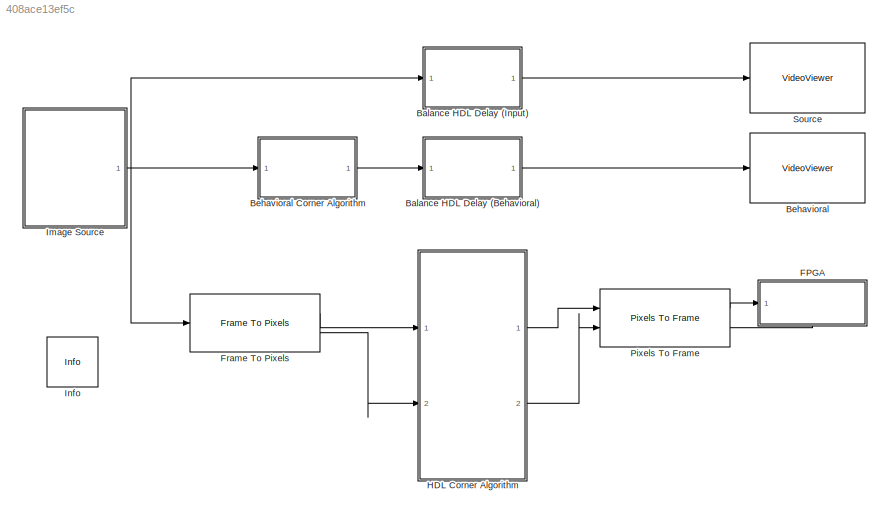
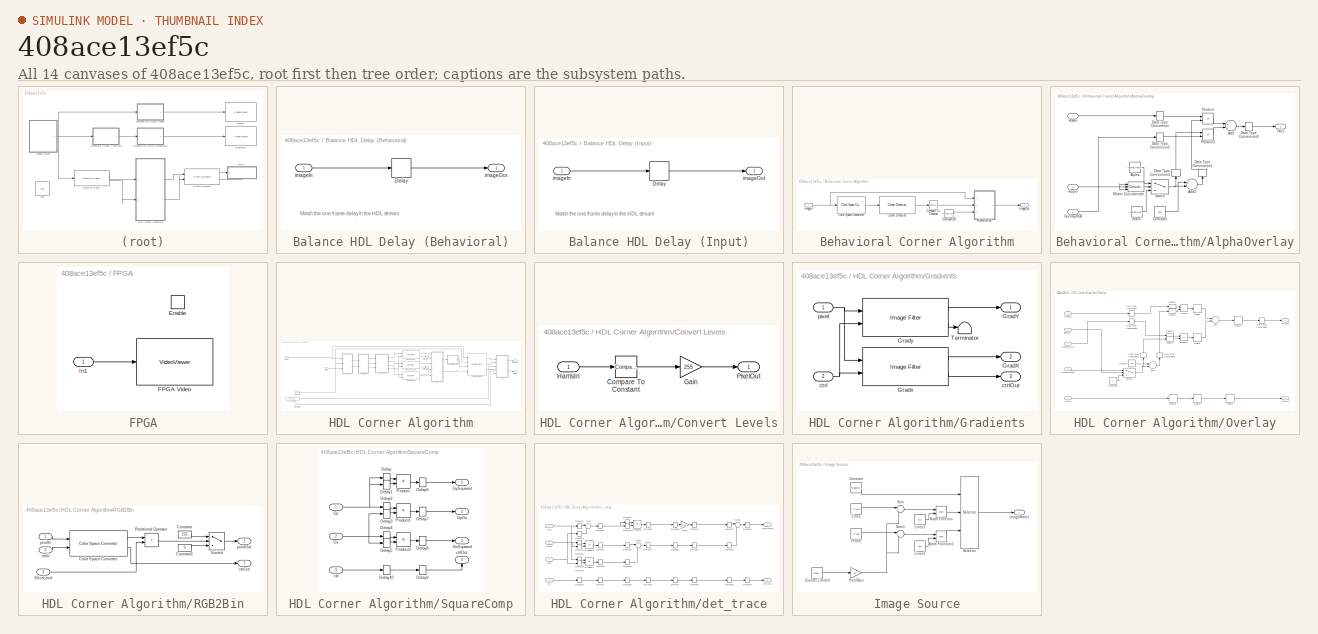
[diagram: thumbnail index - all 14 canvases of the model, root first then tree order]
MODEL slx_408ace13ef5c
KIND model
CONFIG AbsTol = auto
CONFIG EnableMultiTasking = off
CONFIG FixedStep = auto
CONFIG InitFcn = % block settings for 240p, change format as appropriate\nfrm2pix = visionhdl.FrameToPixels;\nfrm2pix.VideoFormat = '240p';\n[activePixelsPerLine, activeLines, totalPixels] = getparamfromfrm2pix(frm2pix);\nnumFrames = 100;\nsimTime = numFrames;\n% pixel control bus\nevalin('base','pixelcontrolbus');
CONFIG MaxStep = auto
CONFIG MinStep = auto
CONFIG RelTol = 1e-3
CONFIG SampleTimeConstraint = Unconstrained
CONFIG Solver = FixedStepDiscrete
CONFIG SolverName = FixedStepDiscrete
CONFIG StartTime = 0.0
CONFIG StopTime = simTime
BLOCK [SubSystem] Balance HDL Delay (Behavioral)
  Ports = [1, 1]
  RequestExecContextInheritance = off
  Variant = off
BLOCK [Delay] Balance HDL Delay (Behavioral)/Delay
  DelayLength = 1
  InputPortMap = u0
  Ports = [1, 1]
BLOCK [Inport] Balance HDL Delay (Behavioral)/imageIn
  IconDisplay = Port number
BLOCK [Outport] Balance HDL Delay (Behavioral)/imageOut
  IconDisplay = Port number
BLOCK [SubSystem] Balance HDL Delay (Input)
  Ports = [1, 1]
  RequestExecContextInheritance = off
  Variant = off
BLOCK [Delay] Balance HDL Delay (Input)/Delay
  DelayLength = 1
  InputPortMap = u0
  Ports = [1, 1]
BLOCK [Inport] Balance HDL Delay (Input)/imageIn
  IconDisplay = Port number
BLOCK [Outport] Balance HDL Delay (Input)/imageOut
  IconDisplay = Port number
BLOCK [VideoViewer] Behavioral
  FigPos = [400.2 479.6 410.4 300]
  Ports = [1]
  ScopeSpecificationString = vipscopes.VideoViewerScopeCfg('CurrentConfiguration', extmgr.ConfigurationSet(extmgr.Configuration('Core','General UI',true),extmgr.Configuration('Core','Source UI',true),extmgr.Configuration('Sources','WiredSimulink',true),extmgr.Configuration('Visuals','Video',true),extmgr.Configuration('Tools','Image Navigation Tools',true),extmgr.Configuration('Tools','Image Tool',true),extmgr.Configuration('T...<+107ch>
BLOCK [SubSystem] Behavioral Corner Algorithm
  Ports = [1, 1]
  RequestExecContextInheritance = off
  Variant = off
BLOCK [SubSystem] Behavioral Corner Algorithm/AlphaOverlay
  Ports = [3, 1]
  RequestExecContextInheritance = off
  Variant = off
BLOCK [Sum] Behavioral Corner Algorithm/AlphaOverlay/Add
  InputSameDT = off
  OutDataTypeStr = fixdt(0,8,8)
  Ports = [2, 1]
  SaturateOnIntegerOverflow = off
BLOCK [Sum] Behavioral Corner Algorithm/AlphaOverlay/Add3
  InputSameDT = off
  Inputs = +-
  OutDataTypeStr = uint8
  Ports = [2, 1]
  SaturateOnIntegerOverflow = off
BLOCK [Constant] Behavioral Corner Algorithm/AlphaOverlay/Alpha
  OutDataTypeStr = uint8
  Value = repmat(reshape([128,128,128],[1 1 3]),[240 320 1])
BLOCK [Constant] Behavioral Corner Algorithm/AlphaOverlay/Black
  OutDataTypeStr = uint8
  Value = repmat(reshape([0,0,0],[1 1 3]),[240 320 1])
BLOCK [Constant] Behavioral Corner Algorithm/AlphaOverlay/Constant
  OutDataTypeStr = uint8
  SampleTime = -1
  Value = 255
BLOCK [DataTypeConversion] Behavioral Corner Algorithm/AlphaOverlay/Data Type Conversion
  ConvertRealWorld = Stored Integer (SI)
  OutDataTypeStr = fixdt(0,8,8)
  RndMeth = Floor
  SaturateOnIntegerOverflow = off
BLOCK [DataTypeConversion] Behavioral Corner Algorithm/AlphaOverlay/Data Type Conversion1
  ConvertRealWorld = Stored Integer (SI)
  OutDataTypeStr = fixdt(0,8,8)
  RndMeth = Floor
  SaturateOnIntegerOverflow = off
BLOCK [DataTypeConversion] Behavioral Corner Algorithm/AlphaOverlay/Data Type Conversion2
  ConvertRealWorld = Stored Integer (SI)
  OutDataTypeStr = fixdt(0,8,8)
  RndMeth = Floor
  SaturateOnIntegerOverflow = off
BLOCK [DataTypeConversion] Behavioral Corner Algorithm/AlphaOverlay/Data Type Conversion5
  ConvertRealWorld = Stored Integer (SI)
  OutDataTypeStr = fixdt(0,8,8)
  RndMeth = Floor
  SaturateOnIntegerOverflow = off
BLOCK [DataTypeConversion] Behavioral Corner Algorithm/AlphaOverlay/Data Type Conversion8
  ConvertRealWorld = Stored Integer (SI)
  OutDataTypeStr = uint8
  RndMeth = Floor
  SaturateOnIntegerOverflow = off
BLOCK [Inport] Behavioral Corner Algorithm/AlphaOverlay/KeyIn
  IconDisplay = Port number
  Port = 2
BLOCK [Concatenate] Behavioral Corner Algorithm/AlphaOverlay/Matrix Concatenate
  ConcatenateDimension = 3
  Mode = Multidimensional array
  NumInputs = 3
  Ports = [3, 1]
BLOCK [Outport] Behavioral Corner Algorithm/AlphaOverlay/Out1
  IconDisplay = Port number
BLOCK [Inport] Behavioral Corner Algorithm/AlphaOverlay/OverlayRGB
  IconDisplay = Port number
  Port = 3
BLOCK [Product] Behavioral Corner Algorithm/AlphaOverlay/Product
  InputSameDT = off
  OutDataTypeStr = fixdt(0,8,8)
  Ports = [2, 1]
  RndMeth = Floor
BLOCK [Product] Behavioral Corner Algorithm/AlphaOverlay/Product3
  InputSameDT = off
  OutDataTypeStr = fixdt(0,8,8)
  Ports = [2, 1]
  RndMeth = Floor
BLOCK [Inport] Behavioral Corner Algorithm/AlphaOverlay/RGBIn
  IconDisplay = Port number
BLOCK [Switch] Behavioral Corner Algorithm/AlphaOverlay/Switch
  Criteria = u2 ~= 0
  InputSameDT = off
  SaturateOnIntegerOverflow = off
BLOCK [Reference] Behavioral Corner Algorithm/Color Space Conversion  REF=visionconversions/Color Space
 Conversion
  Ports = [1, 1]
  SourceBlock = visionconversions/Color Space\n Conversion
  SourceProductBaseCode = VP
  SourceProductName = Computer Vision System Toolbox
  SourceType = Color Space Conversion
BLOCK [Reference] Behavioral Corner Algorithm/Compare To Constant  REF=simulink/Logic and Bit
Operations/Compare
To Constant
  Ports = [1, 1]
  SourceBlock = simulink/Logic and Bit\nOperations/Compare\nTo Constant
  SourceProductBaseCode = SL
  SourceProductName = Simulink
  SourceType = Compare To Constant
BLOCK [Reference] Behavioral Corner Algorithm/Corner Detection  REF=visionanalysis/Corner Detection
  Ports = [1, 1]
  SourceBlock = visionanalysis/Corner Detection
  SourceProductBaseCode = VP
  SourceProductName = Computer Vision System Toolbox
  SourceType = Corner Detection
BLOCK [Constant] Behavioral Corner Algorithm/OverlayRGB 
  OutDataTypeStr = uint8
  Value = repmat(reshape([255,0,0],[1,1,3]),[240,320,1])
BLOCK [Inport] Behavioral Corner Algorithm/imageIn
  IconDisplay = Port number
BLOCK [Outport] Behavioral Corner Algorithm/imageOut
  IconDisplay = Port number
BLOCK [SubSystem] FPGA
  Ports = [1, 0, 1]
  RequestExecContextInheritance = off
  Variant = off
BLOCK [EnablePort] FPGA/Enable
  Ports = []
BLOCK [VideoViewer] FPGA/FPGA Video
  FigPos = [864.2 436.4 416 298.4]
  Ports = [1]
  ScopeSpecificationString = vipscopes.VideoViewerScopeCfg('CurrentConfiguration', extmgr.ConfigurationSet(extmgr.Configuration('Core','General UI',true),extmgr.Configuration('Core','Source UI',true),extmgr.Configuration('Sources','WiredSimulink',true),extmgr.Configuration('Visuals','Video',true,'AxesProperties',struct('Color',[1 1 1],'XColor',[0.15 0.15 0.15],'YColor',[0.15 0.15 0.15],'ZColor',[0.15 0.15 0.15],'XGrid','off',...<+639ch>
  colormapValue = gray(256)
BLOCK [Inport] FPGA/In1
  IconDisplay = Port number
BLOCK [Reference] Frame To Pixels  REF=visionhdlio/Frame To Pixels
  Ports = [1, 2]
  SourceBlock = visionhdlio/Frame To Pixels
  SourceProductBaseCode = VT
  SourceProductName = Vision HDL Toolbox
  SourceType = Frame To Pixels
BLOCK [SubSystem] HDL Corner Algorithm
  Ports = [2, 2]
  RequestExecContextInheritance = off
  TreatAsAtomicUnit = on
  Variant = off
BLOCK [Constant] HDL Corner Algorithm/Constant1
  OutDataTypeStr = uint8
  SampleTime = -1
  Value = [0,255,0]
  VectorParams1D = off
BLOCK [Constant] HDL Corner Algorithm/Constant3
  OutDataTypeStr = uint8
  SampleTime = -1
  Value = 70
BLOCK [Constant] HDL Corner Algorithm/Constant4
  OutDataTypeStr = uint8
  SampleTime = -1
  Value = 210
BLOCK [SubSystem] HDL Corner Algorithm/Convert Levels
  Ports = [1, 1]
  RequestExecContextInheritance = off
  Variant = off
BLOCK [Reference] HDL Corner Algorithm/Convert Levels/Compare To Constant  REF=simulink/Logic and Bit
Operations/Compare
To Constant
  Ports = [1, 1]
  SourceBlock = simulink/Logic and Bit\nOperations/Compare\nTo Constant
  SourceProductBaseCode = SL
  SourceProductName = Simulink
  SourceType = Compare To Constant
BLOCK [Gain] HDL Corner Algorithm/Convert Levels/Gain
  Gain = 255
  OutDataTypeStr = uint8
  ParamDataTypeStr = Inherit: Inherit via internal rule
  SaturateOnIntegerOverflow = off
BLOCK [Inport] HDL Corner Algorithm/Convert Levels/HarrisIn
  IconDisplay = Port number
BLOCK [Outport] HDL Corner Algorithm/Convert Levels/PixelOut
  IconDisplay = Port number
BLOCK [Reference] HDL Corner Algorithm/GaussianGx  REF=visionhdlfilter/Image Filter
  Ports = [2, 2]
  SourceBlock = visionhdlfilter/Image Filter
  SourceProductBaseCode = VT
  SourceProductName = Vision HDL Toolbox
  SourceType = Image Filter
BLOCK [Reference] HDL Corner Algorithm/GaussianGy  REF=visionhdlfilter/Image Filter
  Ports = [2, 2]
  SourceBlock = visionhdlfilter/Image Filter
  SourceProductBaseCode = VT
  SourceProductName = Vision HDL Toolbox
  SourceType = Image Filter
BLOCK [Reference] HDL Corner Algorithm/GaussianGyGx  REF=visionhdlfilter/Image Filter
  Ports = [2, 2]
  SourceBlock = visionhdlfilter/Image Filter
  SourceProductBaseCode = VT
  SourceProductName = Vision HDL Toolbox
  SourceType = Image Filter
BLOCK [SubSystem] HDL Corner Algorithm/Gradients
  Ports = [2, 3]
  RequestExecContextInheritance = off
  Variant = off
BLOCK [Outport] HDL Corner Algorithm/Gradients/GradX
  IconDisplay = Port number
  Port = 2
BLOCK [Outport] HDL Corner Algorithm/Gradients/GradY
  IconDisplay = Port number
BLOCK [Reference] HDL Corner Algorithm/Gradients/Gradx  REF=visionhdlfilter/Image Filter
  Ports = [2, 2]
  SourceBlock = visionhdlfilter/Image Filter
  SourceProductBaseCode = VT
  SourceProductName = Vision HDL Toolbox
  SourceType = Image Filter
BLOCK [Reference] HDL Corner Algorithm/Gradients/Grady  REF=visionhdlfilter/Image Filter
  Ports = [2, 2]
  SourceBlock = visionhdlfilter/Image Filter
  SourceProductBaseCode = VT
  SourceProductName = Vision HDL Toolbox
  SourceType = Image Filter
BLOCK [Terminator] HDL Corner Algorithm/Gradients/Terminator
BLOCK [Inport] HDL Corner Algorithm/Gradients/ctrl
  IconDisplay = Port number
  Port = 2
BLOCK [Outport] HDL Corner Algorithm/Gradients/ctrlOut
  IconDisplay = Port number
  Port = 3
BLOCK [Inport] HDL Corner Algorithm/Gradients/pixel
  IconDisplay = Port number
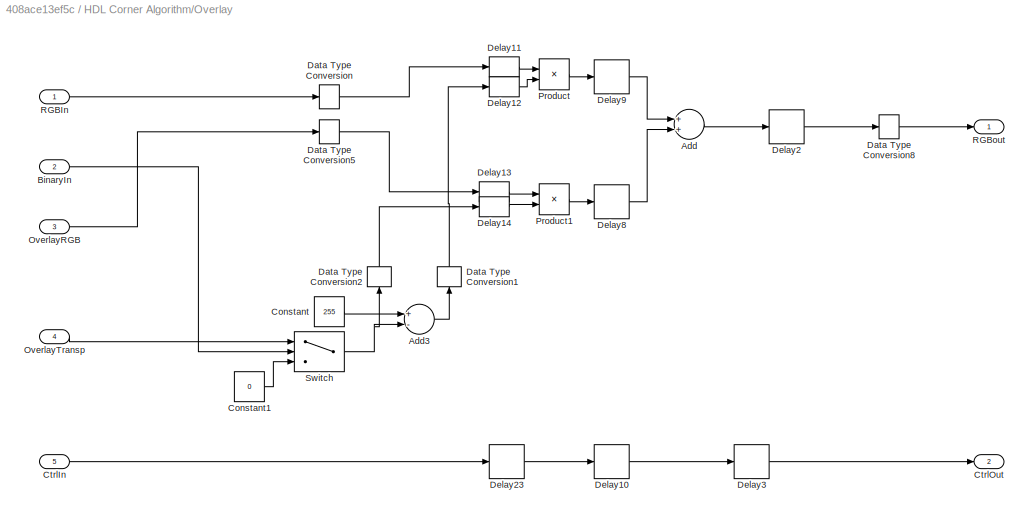
BLOCK [SubSystem] HDL Corner Algorithm/Overlay
  Ports = [5, 2]
  RequestExecContextInheritance = off
  Variant = off
BLOCK [Sum] HDL Corner Algorithm/Overlay/Add
  InputSameDT = off
  OutDataTypeStr = fixdt(0,8,8)
  Ports = [2, 1]
  SaturateOnIntegerOverflow = off
BLOCK [Sum] HDL Corner Algorithm/Overlay/Add3
  InputSameDT = off
  Inputs = +-
  OutDataTypeStr = uint8
  Ports = [2, 1]
  SaturateOnIntegerOverflow = off
BLOCK [Inport] HDL Corner Algorithm/Overlay/BinaryIn
  IconDisplay = Port number
  Port = 2
BLOCK [Constant] HDL Corner Algorithm/Overlay/Constant
  OutDataTypeStr = uint8
  SampleTime = -1
  Value = 255
BLOCK [Constant] HDL Corner Algorithm/Overlay/Constant1
  OutDataTypeStr = uint8
  Value = 0
BLOCK [Inport] HDL Corner Algorithm/Overlay/CtrlIn
  IconDisplay = Port number
  Port = 5
BLOCK [Outport] HDL Corner Algorithm/Overlay/CtrlOut 
  IconDisplay = Port number
  Port = 2
BLOCK [DataTypeConversion] HDL Corner Algorithm/Overlay/Data Type Conversion
  ConvertRealWorld = Stored Integer (SI)
  OutDataTypeStr = fixdt(0,8,8)
  RndMeth = Floor
  SaturateOnIntegerOverflow = off
BLOCK [DataTypeConversion] HDL Corner Algorithm/Overlay/Data Type Conversion1
  ConvertRealWorld = Stored Integer (SI)
  OutDataTypeStr = fixdt(0,8,8)
  RndMeth = Floor
  SaturateOnIntegerOverflow = off
BLOCK [DataTypeConversion] HDL Corner Algorithm/Overlay/Data Type Conversion2
  ConvertRealWorld = Stored Integer (SI)
  OutDataTypeStr = fixdt(0,8,8)
  RndMeth = Floor
  SaturateOnIntegerOverflow = off
BLOCK [DataTypeConversion] HDL Corner Algorithm/Overlay/Data Type Conversion5
  ConvertRealWorld = Stored Integer (SI)
  OutDataTypeStr = fixdt(0,8,8)
  RndMeth = Floor
  SaturateOnIntegerOverflow = off
BLOCK [DataTypeConversion] HDL Corner Algorithm/Overlay/Data Type Conversion8
  ConvertRealWorld = Stored Integer (SI)
  OutDataTypeStr = uint8
  RndMeth = Floor
  SaturateOnIntegerOverflow = off
BLOCK [Delay] HDL Corner Algorithm/Overlay/Delay10
  DelayLength = 1
  InputPortMap = u0
  Ports = [1, 1]
BLOCK [Delay] HDL Corner Algorithm/Overlay/Delay11
  DelayLength = 1
  InputPortMap = u0
  Ports = [1, 1]
BLOCK [Delay] HDL Corner Algorithm/Overlay/Delay12
  DelayLength = 1
  InputPortMap = u0
  Ports = [1, 1]
BLOCK [Delay] HDL Corner Algorithm/Overlay/Delay13
  DelayLength = 1
  InputPortMap = u0
  Ports = [1, 1]
BLOCK [Delay] HDL Corner Algorithm/Overlay/Delay14
  DelayLength = 1
  InputPortMap = u0
  Ports = [1, 1]
BLOCK [Delay] HDL Corner Algorithm/Overlay/Delay2
  DelayLength = 1
  InputPortMap = u0
  Ports = [1, 1]
BLOCK [Delay] HDL Corner Algorithm/Overlay/Delay23
  DelayLength = 1
  InputPortMap = u0
  Ports = [1, 1]
BLOCK [Delay] HDL Corner Algorithm/Overlay/Delay3
  DelayLength = 1
  InputPortMap = u0
  Ports = [1, 1]
BLOCK [Delay] HDL Corner Algorithm/Overlay/Delay8
  DelayLength = 1
  InputPortMap = u0
  Ports = [1, 1]
BLOCK [Delay] HDL Corner Algorithm/Overlay/Delay9
  DelayLength = 1
  InputPortMap = u0
  Ports = [1, 1]
BLOCK [Inport] HDL Corner Algorithm/Overlay/OverlayRGB
  IconDisplay = Port number
  Port = 3
BLOCK [Inport] HDL Corner Algorithm/Overlay/OverlayTransp
  IconDisplay = Port number
  Port = 4
BLOCK [Product] HDL Corner Algorithm/Overlay/Product
  InputSameDT = off
  OutDataTypeStr = fixdt(0,8,8)
  Ports = [2, 1]
  RndMeth = Floor
BLOCK [Product] HDL Corner Algorithm/Overlay/Product1
  InputSameDT = off
  OutDataTypeStr = fixdt(0,8,8)
  Ports = [2, 1]
  RndMeth = Floor
BLOCK [Inport] HDL Corner Algorithm/Overlay/RGBIn
  IconDisplay = Port number
BLOCK [Outport] HDL Corner Algorithm/Overlay/RGBout
  IconDisplay = Port number
BLOCK [Switch] HDL Corner Algorithm/Overlay/Switch
  Criteria = u2 ~= 0
  InputSameDT = off
  SaturateOnIntegerOverflow = off
BLOCK [Reference] HDL Corner Algorithm/Pixel Stream Aligner  REF=visionhdlutilities/Pixel Stream Aligner
  Ports = [4, 3]
  SourceBlock = visionhdlutilities/Pixel Stream Aligner
  SourceProductBaseCode = VT
  SourceProductName = Vision HDL Toolbox
  SourceType = visionhdl.PixelStreamAligner
BLOCK [SubSystem] HDL Corner Algorithm/RGB2Bin
  Ports = [3, 2]
  RequestExecContextInheritance = off
  Variant = off
BLOCK [Reference] HDL Corner Algorithm/RGB2Bin/Color Space Converter  REF=visionhdlconversions/Color Space Converter
  Ports = [2, 2]
  SourceBlock = visionhdlconversions/Color Space Converter
  SourceProductBaseCode = VT
  SourceProductName = Vision HDL Toolbox
  SourceType = Color Space Converter
BLOCK [Constant] HDL Corner Algorithm/RGB2Bin/Constant
  OutDataTypeStr = uint8
  Value = 255
BLOCK [Constant] HDL Corner Algorithm/RGB2Bin/Constant1
  OutDataTypeStr = uint8
  Value = 0
BLOCK [RelationalOperator] HDL Corner Algorithm/RGB2Bin/Relational Operator
  InputSameDT = off
  Operator = >
  OutDataTypeStr = boolean
  Ports = [2, 1]
BLOCK [Inport] HDL Corner Algorithm/RGB2Bin/SliceLevel
  IconDisplay = Port number
  Port = 3
BLOCK [Switch] HDL Corner Algorithm/RGB2Bin/Switch
  Criteria = u2 ~= 0
  InputSameDT = off
  SaturateOnIntegerOverflow = off
BLOCK [Inport] HDL Corner Algorithm/RGB2Bin/ctrlIn
  IconDisplay = Port number
  Port = 2
BLOCK [Outport] HDL Corner Algorithm/RGB2Bin/ctrlOut
  IconDisplay = Port number
  Port = 2
BLOCK [Inport] HDL Corner Algorithm/RGB2Bin/pixelIn
  IconDisplay = Port number
BLOCK [Outport] HDL Corner Algorithm/RGB2Bin/pixelOut
  IconDisplay = Port number
BLOCK [SubSystem] HDL Corner Algorithm/SquareComp
  Ports = [3, 4]
  RequestExecContextInheritance = off
  Variant = off
BLOCK [Delay] HDL Corner Algorithm/SquareComp/Delay
  DelayLength = 1
  InitialCondition = 0
  InputPortMap = u0
  Ports = [1, 1]
BLOCK [Delay] HDL Corner Algorithm/SquareComp/Delay1
  DelayLength = 1
  InitialCondition = 0
  InputPortMap = u0
  Ports = [1, 1]
BLOCK [Delay] HDL Corner Algorithm/SquareComp/Delay10
  DelayLength = 1
  InitialCondition = 0
  InputPortMap = u0
  Ports = [1, 1]
BLOCK [Delay] HDL Corner Algorithm/SquareComp/Delay2
  DelayLength = 1
  InitialCondition = 0
  InputPortMap = u0
  Ports = [1, 1]
BLOCK [Delay] HDL Corner Algorithm/SquareComp/Delay3
  DelayLength = 1
  InitialCondition = 0
  InputPortMap = u0
  Ports = [1, 1]
BLOCK [Delay] HDL Corner Algorithm/SquareComp/Delay4
  DelayLength = 1
  InitialCondition = 0
  InputPortMap = u0
  Ports = [1, 1]
BLOCK [Delay] HDL Corner Algorithm/SquareComp/Delay5
  DelayLength = 1
  InitialCondition = 0
  InputPortMap = u0
  Ports = [1, 1]
BLOCK [Delay] HDL Corner Algorithm/SquareComp/Delay6
  DelayLength = 1
  InitialCondition = 0
  InputPortMap = u0
  Ports = [1, 1]
BLOCK [Delay] HDL Corner Algorithm/SquareComp/Delay7
  DelayLength = 1
  InitialCondition = 0
  InputPortMap = u0
  Ports = [1, 1]
BLOCK [Delay] HDL Corner Algorithm/SquareComp/Delay8
  DelayLength = 1
  InitialCondition = 0
  InputPortMap = u0
  Ports = [1, 1]
BLOCK [Delay] HDL Corner Algorithm/SquareComp/Delay9
  DelayLength = 1
  InitialCondition = 0
  InputPortMap = u0
  Ports = [1, 1]
BLOCK [Inport] HDL Corner Algorithm/SquareComp/Gx
  IconDisplay = Port number
  Port = 2
BLOCK [Outport] HDL Corner Algorithm/SquareComp/GxSquared
  IconDisplay = Port number
  Port = 3
BLOCK [Inport] HDL Corner Algorithm/SquareComp/Gy
  IconDisplay = Port number
BLOCK [Outport] HDL Corner Algorithm/SquareComp/GyGx
  IconDisplay = Port number
  Port = 2
BLOCK [Outport] HDL Corner Algorithm/SquareComp/GySquared
  IconDisplay = Port number
BLOCK [Product] HDL Corner Algorithm/SquareComp/Product
  InputSameDT = off
  OutDataTypeStr = Inherit: Inherit via internal rule
  Ports = [2, 1]
  RndMeth = Floor
  SaturateOnIntegerOverflow = off
BLOCK [Product] HDL Corner Algorithm/SquareComp/Product1
  InputSameDT = off
  OutDataTypeStr = Inherit: Inherit via internal rule
  Ports = [2, 1]
  RndMeth = Floor
  SaturateOnIntegerOverflow = off
BLOCK [Product] HDL Corner Algorithm/SquareComp/Product2
  InputSameDT = off
  OutDataTypeStr = Inherit: Inherit via internal rule
  Ports = [2, 1]
  RndMeth = Floor
  SaturateOnIntegerOverflow = off
BLOCK [Inport] HDL Corner Algorithm/SquareComp/ctrl
  IconDisplay = Port number
  Port = 3
BLOCK [Outport] HDL Corner Algorithm/SquareComp/ctrlOut
  IconDisplay = Port number
  Port = 4
BLOCK [Terminator] HDL Corner Algorithm/Terminator
BLOCK [Terminator] HDL Corner Algorithm/Terminator1
BLOCK [Inport] HDL Corner Algorithm/ctrlIn
  IconDisplay = Port number
  Port = 2
BLOCK [Outport] HDL Corner Algorithm/ctrlOut
  IconDisplay = Port number
  Port = 2
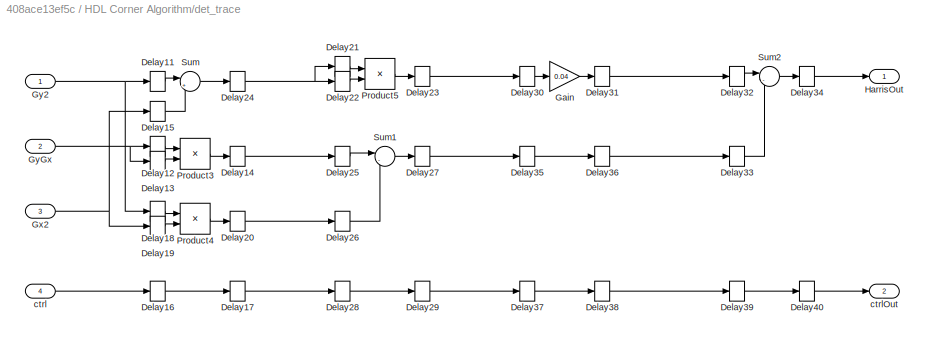
BLOCK [SubSystem] HDL Corner Algorithm/det_trace
  Ports = [4, 2]
  RequestExecContextInheritance = off
  Variant = off
BLOCK [Delay] HDL Corner Algorithm/det_trace/Delay11
  DelayLength = 1
  InitialCondition = 0
  InputPortMap = u0
  Ports = [1, 1]
BLOCK [Delay] HDL Corner Algorithm/det_trace/Delay12
  DelayLength = 1
  InitialCondition = 0
  InputPortMap = u0
  Ports = [1, 1]
BLOCK [Delay] HDL Corner Algorithm/det_trace/Delay13
  DelayLength = 1
  InitialCondition = 0
  InputPortMap = u0
  Ports = [1, 1]
BLOCK [Delay] HDL Corner Algorithm/det_trace/Delay14
  DelayLength = 1
  InitialCondition = 0
  InputPortMap = u0
  Ports = [1, 1]
BLOCK [Delay] HDL Corner Algorithm/det_trace/Delay15
  DelayLength = 1
  InitialCondition = 0
  InputPortMap = u0
  Ports = [1, 1]
BLOCK [Delay] HDL Corner Algorithm/det_trace/Delay16
  DelayLength = 1
  InitialCondition = 0
  InputPortMap = u0
  Ports = [1, 1]
BLOCK [Delay] HDL Corner Algorithm/det_trace/Delay17
  DelayLength = 1
  InitialCondition = 0
  InputPortMap = u0
  Ports = [1, 1]
BLOCK [Delay] HDL Corner Algorithm/det_trace/Delay18
  DelayLength = 1
  InitialCondition = 0
  InputPortMap = u0
  Ports = [1, 1]
BLOCK [Delay] HDL Corner Algorithm/det_trace/Delay19
  DelayLength = 1
  InitialCondition = 0
  InputPortMap = u0
  Ports = [1, 1]
BLOCK [Delay] HDL Corner Algorithm/det_trace/Delay20
  DelayLength = 1
  InitialCondition = 0
  InputPortMap = u0
  Ports = [1, 1]
BLOCK [Delay] HDL Corner Algorithm/det_trace/Delay21
  DelayLength = 1
  InitialCondition = 0
  InputPortMap = u0
  Ports = [1, 1]
BLOCK [Delay] HDL Corner Algorithm/det_trace/Delay22
  DelayLength = 1
  InitialCondition = 0
  InputPortMap = u0
  Ports = [1, 1]
BLOCK [Delay] HDL Corner Algorithm/det_trace/Delay23
  DelayLength = 1
  InitialCondition = 0
  InputPortMap = u0
  Ports = [1, 1]
BLOCK [Delay] HDL Corner Algorithm/det_trace/Delay24
  DelayLength = 1
  InitialCondition = 0
  InputPortMap = u0
  Ports = [1, 1]
BLOCK [Delay] HDL Corner Algorithm/det_trace/Delay25
  DelayLength = 1
  InitialCondition = 0
  InputPortMap = u0
  Ports = [1, 1]
BLOCK [Delay] HDL Corner Algorithm/det_trace/Delay26
  DelayLength = 1
  InitialCondition = 0
  InputPortMap = u0
  Ports = [1, 1]
BLOCK [Delay] HDL Corner Algorithm/det_trace/Delay27
  DelayLength = 1
  InitialCondition = 0
  InputPortMap = u0
  Ports = [1, 1]
BLOCK [Delay] HDL Corner Algorithm/det_trace/Delay28
  DelayLength = 1
  InitialCondition = 0
  InputPortMap = u0
  Ports = [1, 1]
BLOCK [Delay] HDL Corner Algorithm/det_trace/Delay29
  DelayLength = 1
  InitialCondition = 0
  InputPortMap = u0
  Ports = [1, 1]
BLOCK [Delay] HDL Corner Algorithm/det_trace/Delay30
  DelayLength = 1
  InitialCondition = 0
  InputPortMap = u0
  Ports = [1, 1]
BLOCK [Delay] HDL Corner Algorithm/det_trace/Delay31
  DelayLength = 1
  InitialCondition = 0
  InputPortMap = u0
  Ports = [1, 1]
BLOCK [Delay] HDL Corner Algorithm/det_trace/Delay32
  DelayLength = 1
  InitialCondition = 0
  InputPortMap = u0
  Ports = [1, 1]
BLOCK [Delay] HDL Corner Algorithm/det_trace/Delay33
  DelayLength = 1
  InitialCondition = 0
  InputPortMap = u0
  Ports = [1, 1]
BLOCK [Delay] HDL Corner Algorithm/det_trace/Delay34
  DelayLength = 1
  InitialCondition = 0
  InputPortMap = u0
  Ports = [1, 1]
BLOCK [Delay] HDL Corner Algorithm/det_trace/Delay35
  DelayLength = 1
  InitialCondition = 0
  InputPortMap = u0
  Ports = [1, 1]
BLOCK [Delay] HDL Corner Algorithm/det_trace/Delay36
  DelayLength = 1
  InitialCondition = 0
  InputPortMap = u0
  Ports = [1, 1]
BLOCK [Delay] HDL Corner Algorithm/det_trace/Delay37
  DelayLength = 1
  InitialCondition = 0
  InputPortMap = u0
  Ports = [1, 1]
BLOCK [Delay] HDL Corner Algorithm/det_trace/Delay38
  DelayLength = 1
  InitialCondition = 0
  InputPortMap = u0
  Ports = [1, 1]
BLOCK [Delay] HDL Corner Algorithm/det_trace/Delay39
  DelayLength = 1
  InitialCondition = 0
  InputPortMap = u0
  Ports = [1, 1]
BLOCK [Delay] HDL Corner Algorithm/det_trace/Delay40
  DelayLength = 1
  InitialCondition = 0
  InputPortMap = u0
  Ports = [1, 1]
BLOCK [Gain] HDL Corner Algorithm/det_trace/Gain
  Gain = 0.04
  ParamDataTypeStr = fixdt(0,16,16)
  SaturateOnIntegerOverflow = off
BLOCK [Inport] HDL Corner Algorithm/det_trace/Gx2
  IconDisplay = Port number
  Port = 3
BLOCK [Inport] HDL Corner Algorithm/det_trace/Gy2
  IconDisplay = Port number
BLOCK [Inport] HDL Corner Algorithm/det_trace/GyGx
  IconDisplay = Port number
  Port = 2
BLOCK [Outport] HDL Corner Algorithm/det_trace/HarrisOut
  IconDisplay = Port number
BLOCK [Product] HDL Corner Algorithm/det_trace/Product3
  InputSameDT = off
  OutDataTypeStr = Inherit: Inherit via internal rule
  Ports = [2, 1]
  RndMeth = Floor
  SaturateOnIntegerOverflow = off
BLOCK [Product] HDL Corner Algorithm/det_trace/Product4
  InputSameDT = off
  OutDataTypeStr = Inherit: Inherit via internal rule
  Ports = [2, 1]
  RndMeth = Floor
  SaturateOnIntegerOverflow = off
BLOCK [Product] HDL Corner Algorithm/det_trace/Product5
  InputSameDT = off
  OutDataTypeStr = Inherit: Inherit via internal rule
  Ports = [2, 1]
  RndMeth = Floor
  SaturateOnIntegerOverflow = off
BLOCK [Sum] HDL Corner Algorithm/det_trace/Sum
  IconShape = round
  InputSameDT = off
  Inputs = |++
  Ports = [2, 1]
  SaturateOnIntegerOverflow = off
BLOCK [Sum] HDL Corner Algorithm/det_trace/Sum1
  IconShape = round
  InputSameDT = off
  Inputs = |-+
  OutDataTypeStr = Inherit: Inherit via internal rule
  Ports = [2, 1]
  SaturateOnIntegerOverflow = off
BLOCK [Sum] HDL Corner Algorithm/det_trace/Sum2
  IconShape = round
  InputSameDT = off
  Inputs = |-+
  OutDataTypeStr = Inherit: Inherit via internal rule
  Ports = [2, 1]
  SaturateOnIntegerOverflow = off
BLOCK [Inport] HDL Corner Algorithm/det_trace/ctrl
  IconDisplay = Port number
  Port = 4
BLOCK [Outport] HDL Corner Algorithm/det_trace/ctrlOut
  IconDisplay = Port number
  Port = 2
BLOCK [Inport] HDL Corner Algorithm/pixelIn
  IconDisplay = Port number
BLOCK [Outport] HDL Corner Algorithm/pixelOut
  IconDisplay = Port number
BLOCK [SubSystem] Image Source
  Ports = [0, 1]
  RequestExecContextInheritance = off
  Variant = off
BLOCK [Constant] Image Source/Constant
  Value = imread('cornerboxes.png')
  VectorParams1D = off
BLOCK [Reference] Image Source/Counter Limited  REF=simulink/Sources/Counter
Limited
  Ports = [0, 1]
  SourceBlock = simulink/Sources/Counter\nLimited
  SourceProductBaseCode = SL
  SourceProductName = Simulink
  SourceType = Counter Limited
BLOCK [Constant] Image Source/Lines
  Value = [1:240]
BLOCK [Constant] Image Source/Lines1
  Value = 240
BLOCK [Constant] Image Source/Lines2
  Value = 320
BLOCK [Math] Image Source/Math Function
  Operator = mod
  Ports = [2, 1]
BLOCK [Math] Image Source/Math Function1
  Operator = mod
  Ports = [2, 1]
BLOCK [Gain] Image Source/PixelGain
  Gain = 10
  OutDataTypeStr = double
  ParamDataTypeStr = Inherit: Inherit via internal rule
  SaturateOnIntegerOverflow = off
BLOCK [Constant] Image Source/Pixels
  Value = [1:320]
BLOCK [Selector] Image Source/Selector
  IndexMode = Zero-based
  IndexOptions = Index vector (port),Index vector (port),Select all
  Indices = [1 3],1,1
  InputPortWidth = 3
  NumberOfDimensions = 3
  OutputSizes = 1,1,1
  Ports = [3, 1]
BLOCK [Sum] Image Source/Sum
  IconShape = round
  InputSameDT = off
  Inputs = |++
  OutDataTypeStr = Inherit: Inherit via internal rule
  Ports = [2, 1]
  SaturateOnIntegerOverflow = off
BLOCK [Sum] Image Source/Sum1
  IconShape = round
  InputSameDT = off
  Inputs = |++
  OutDataTypeStr = Inherit: Inherit via internal rule
  Ports = [2, 1]
  SaturateOnIntegerOverflow = off
BLOCK [Outport] Image Source/imageMatrix
  IconDisplay = Port number
BLOCK [Reference] Info  REF=visionhdlmisc/Info
  Ports = []
  SourceBlock = visionhdlmisc/Info
  SourceProductBaseCode = VT
  SourceProductName = Vision HDL Toolbox
  SourceType = Info
BLOCK [Reference] Pixels To Frame  REF=visionhdlio/Pixels To Frame
  Ports = [2, 2]
  SourceBlock = visionhdlio/Pixels To Frame
  SourceProductBaseCode = VT
  SourceProductName = Vision HDL Toolbox
  SourceType = Pixels To Frame
BLOCK [VideoViewer] Source
  FigPos = [12.2 436.4 409.6 300]
  Ports = [1]
  ScopeSpecificationString = vipscopes.VideoViewerScopeCfg('CurrentConfiguration', extmgr.ConfigurationSet(extmgr.Configuration('Core','General UI',true),extmgr.Configuration('Core','Source UI',true),extmgr.Configuration('Sources','WiredSimulink',true),extmgr.Configuration('Visuals','Video',true),extmgr.Configuration('Tools','Image Navigation Tools',true),extmgr.Configuration('Tools','Image Tool',true),extmgr.Configuration('T...<+106ch>
ANNOTATION Balance HDL Delay (Behavioral): Match the one frame delay in the HDL stream
ANNOTATION Balance HDL Delay (Input): Match the one frame delay in the HDL stream
LINE Balance HDL Delay (Behavioral)/Delay:1 -> Balance HDL Delay (Behavioral)/imageOut:1
LINE Balance HDL Delay (Behavioral)/imageIn:1 -> Balance HDL Delay (Behavioral)/Delay:1
LINE Balance HDL Delay (Behavioral):1 -> Behavioral:1
LINE Balance HDL Delay (Input)/Delay:1 -> Balance HDL Delay (Input)/imageOut:1
LINE Balance HDL Delay (Input)/imageIn:1 -> Balance HDL Delay (Input)/Delay:1
LINE Balance HDL Delay (Input):1 -> Source:1
LINE Behavioral Corner Algorithm/AlphaOverlay/Add3:1 -> Behavioral Corner Algorithm/AlphaOverlay/Data Type Conversion1:1
LINE Behavioral Corner Algorithm/AlphaOverlay/Add:1 -> Behavioral Corner Algorithm/AlphaOverlay/Data Type Conversion8:1
LINE Behavioral Corner Algorithm/AlphaOverlay/Alpha:1 -> Behavioral Corner Algorithm/AlphaOverlay/Switch:1
LINE Behavioral Corner Algorithm/AlphaOverlay/Black:1 -> Behavioral Corner Algorithm/AlphaOverlay/Switch:3
LINE Behavioral Corner Algorithm/AlphaOverlay/Constant:1 -> Behavioral Corner Algorithm/AlphaOverlay/Add3:1
LINE Behavioral Corner Algorithm/AlphaOverlay/Data Type Conversion1:1 -> Behavioral Corner Algorithm/AlphaOverlay/Product:2
LINE Behavioral Corner Algorithm/AlphaOverlay/Data Type Conversion2:1 -> Behavioral Corner Algorithm/AlphaOverlay/Product3:1
LINE Behavioral Corner Algorithm/AlphaOverlay/Data Type Conversion5:1 -> Behavioral Corner Algorithm/AlphaOverlay/Product3:2
LINE Behavioral Corner Algorithm/AlphaOverlay/Data Type Conversion8:1 -> Behavioral Corner Algorithm/AlphaOverlay/Out1:1
LINE Behavioral Corner Algorithm/AlphaOverlay/Data Type Conversion:1 -> Behavioral Corner Algorithm/AlphaOverlay/Product:1
NET Behavioral Corner Algorithm/AlphaOverlay/KeyIn:1 -> Behavioral Corner Algorithm/AlphaOverlay/Matrix Concatenate:1, Behavioral Corner Algorithm/AlphaOverlay/Matrix Concatenate:2, Behavioral Corner Algorithm/AlphaOverlay/Matrix Concatenate:3
LINE Behavioral Corner Algorithm/AlphaOverlay/Matrix Concatenate:1 -> Behavioral Corner Algorithm/AlphaOverlay/Switch:2
LINE Behavioral Corner Algorithm/AlphaOverlay/OverlayRGB:1 -> Behavioral Corner Algorithm/AlphaOverlay/Data Type Conversion5:1
LINE Behavioral Corner Algorithm/AlphaOverlay/Product3:1 -> Behavioral Corner Algorithm/AlphaOverlay/Add:2
LINE Behavioral Corner Algorithm/AlphaOverlay/Product:1 -> Behavioral Corner Algorithm/AlphaOverlay/Add:1
LINE Behavioral Corner Algorithm/AlphaOverlay/RGBIn:1 -> Behavioral Corner Algorithm/AlphaOverlay/Data Type Conversion:1
NET Behavioral Corner Algorithm/AlphaOverlay/Switch:1 -> Behavioral Corner Algorithm/AlphaOverlay/Add3:2, Behavioral Corner Algorithm/AlphaOverlay/Data Type Conversion2:1
LINE Behavioral Corner Algorithm/AlphaOverlay:1 -> Behavioral Corner Algorithm/imageOut:1
LINE Behavioral Corner Algorithm/Color Space Conversion:1 -> Behavioral Corner Algorithm/Corner Detection:1
LINE Behavioral Corner Algorithm/Compare To Constant:1 -> Behavioral Corner Algorithm/AlphaOverlay:2
LINE Behavioral Corner Algorithm/Corner Detection:1 -> Behavioral Corner Algorithm/Compare To Constant:1
LINE Behavioral Corner Algorithm/OverlayRGB :1 -> Behavioral Corner Algorithm/AlphaOverlay:3
NET Behavioral Corner Algorithm/imageIn:1 -> Behavioral Corner Algorithm/AlphaOverlay:1, Behavioral Corner Algorithm/Color Space Conversion:1
LINE Behavioral Corner Algorithm:1 -> Balance HDL Delay (Behavioral):1
LINE FPGA/In1:1 -> FPGA/FPGA Video:1
LINE Frame To Pixels:1 -> HDL Corner Algorithm:1
LINE Frame To Pixels:2 -> HDL Corner Algorithm:2
LINE HDL Corner Algorithm/Constant1:1 -> HDL Corner Algorithm/Overlay:3
LINE HDL Corner Algorithm/Constant3:1 -> HDL Corner Algorithm/Overlay:4
LINE HDL Corner Algorithm/Constant4:1 -> HDL Corner Algorithm/RGB2Bin:3
LINE HDL Corner Algorithm/Convert Levels/Compare To Constant:1 -> HDL Corner Algorithm/Convert Levels/Gain:1
LINE HDL Corner Algorithm/Convert Levels/Gain:1 -> HDL Corner Algorithm/Convert Levels/PixelOut:1
LINE HDL Corner Algorithm/Convert Levels/HarrisIn:1 -> HDL Corner Algorithm/Convert Levels/Compare To Constant:1
LINE HDL Corner Algorithm/Convert Levels:1 -> HDL Corner Algorithm/Pixel Stream Aligner:3
LINE HDL Corner Algorithm/GaussianGx:1 -> HDL Corner Algorithm/det_trace:3
LINE HDL Corner Algorithm/GaussianGx:2 -> HDL Corner Algorithm/det_trace:4
LINE HDL Corner Algorithm/GaussianGy:1 -> HDL Corner Algorithm/det_trace:1
LINE HDL Corner Algorithm/GaussianGy:2 -> HDL Corner Algorithm/Terminator:1
LINE HDL Corner Algorithm/GaussianGyGx:1 -> HDL Corner Algorithm/det_trace:2
LINE HDL Corner Algorithm/GaussianGyGx:2 -> HDL Corner Algorithm/Terminator1:1
LINE HDL Corner Algorithm/Gradients/Gradx:1 -> HDL Corner Algorithm/Gradients/GradX:1
LINE HDL Corner Algorithm/Gradients/Gradx:2 -> HDL Corner Algorithm/Gradients/ctrlOut:1
LINE HDL Corner Algorithm/Gradients/Grady:1 -> HDL Corner Algorithm/Gradients/GradY:1
LINE HDL Corner Algorithm/Gradients/Grady:2 -> HDL Corner Algorithm/Gradients/Terminator:1
NET HDL Corner Algorithm/Gradients/ctrl:1 -> HDL Corner Algorithm/Gradients/Gradx:2, HDL Corner Algorithm/Gradients/Grady:2
NET HDL Corner Algorithm/Gradients/pixel:1 -> HDL Corner Algorithm/Gradients/Gradx:1, HDL Corner Algorithm/Gradients/Grady:1
LINE HDL Corner Algorithm/Gradients:1 -> HDL Corner Algorithm/SquareComp:1
LINE HDL Corner Algorithm/Gradients:2 -> HDL Corner Algorithm/SquareComp:2
LINE HDL Corner Algorithm/Gradients:3 -> HDL Corner Algorithm/SquareComp:3
LINE HDL Corner Algorithm/Overlay/Add3:1 -> HDL Corner Algorithm/Overlay/Data Type Conversion1:1
LINE HDL Corner Algorithm/Overlay/Add:1 -> HDL Corner Algorithm/Overlay/Delay2:1
LINE HDL Corner Algorithm/Overlay/BinaryIn:1 -> HDL Corner Algorithm/Overlay/Switch:2
LINE HDL Corner Algorithm/Overlay/Constant1:1 -> HDL Corner Algorithm/Overlay/Switch:3
LINE HDL Corner Algorithm/Overlay/Constant:1 -> HDL Corner Algorithm/Overlay/Add3:1
LINE HDL Corner Algorithm/Overlay/CtrlIn:1 -> HDL Corner Algorithm/Overlay/Delay23:1
LINE HDL Corner Algorithm/Overlay/Data Type Conversion1:1 -> HDL Corner Algorithm/Overlay/Delay12:1
LINE HDL Corner Algorithm/Overlay/Data Type Conversion2:1 -> HDL Corner Algorithm/Overlay/Delay14:1
LINE HDL Corner Algorithm/Overlay/Data Type Conversion5:1 -> HDL Corner Algorithm/Overlay/Delay13:1
LINE HDL Corner Algorithm/Overlay/Data Type Conversion8:1 -> HDL Corner Algorithm/Overlay/RGBout:1
LINE HDL Corner Algorithm/Overlay/Data Type Conversion:1 -> HDL Corner Algorithm/Overlay/Delay11:1
LINE HDL Corner Algorithm/Overlay/Delay10:1 -> HDL Corner Algorithm/Overlay/Delay3:1
LINE HDL Corner Algorithm/Overlay/Delay11:1 -> HDL Corner Algorithm/Overlay/Product:1
LINE HDL Corner Algorithm/Overlay/Delay12:1 -> HDL Corner Algorithm/Overlay/Product:2
LINE HDL Corner Algorithm/Overlay/Delay13:1 -> HDL Corner Algorithm/Overlay/Product1:1
LINE HDL Corner Algorithm/Overlay/Delay14:1 -> HDL Corner Algorithm/Overlay/Product1:2
LINE HDL Corner Algorithm/Overlay/Delay23:1 -> HDL Corner Algorithm/Overlay/Delay10:1
LINE HDL Corner Algorithm/Overlay/Delay2:1 -> HDL Corner Algorithm/Overlay/Data Type Conversion8:1
LINE HDL Corner Algorithm/Overlay/Delay3:1 -> HDL Corner Algorithm/Overlay/CtrlOut :1
LINE HDL Corner Algorithm/Overlay/Delay8:1 -> HDL Corner Algorithm/Overlay/Add:2
LINE HDL Corner Algorithm/Overlay/Delay9:1 -> HDL Corner Algorithm/Overlay/Add:1
LINE HDL Corner Algorithm/Overlay/OverlayRGB:1 -> HDL Corner Algorithm/Overlay/Data Type Conversion5:1
LINE HDL Corner Algorithm/Overlay/OverlayTransp:1 -> HDL Corner Algorithm/Overlay/Switch:1
LINE HDL Corner Algorithm/Overlay/Product1:1 -> HDL Corner Algorithm/Overlay/Delay8:1
LINE HDL Corner Algorithm/Overlay/Product:1 -> HDL Corner Algorithm/Overlay/Delay9:1
LINE HDL Corner Algorithm/Overlay/RGBIn:1 -> HDL Corner Algorithm/Overlay/Data Type Conversion:1
NET HDL Corner Algorithm/Overlay/Switch:1 -> HDL Corner Algorithm/Overlay/Add3:2, HDL Corner Algorithm/Overlay/Data Type Conversion2:1
LINE HDL Corner Algorithm/Overlay:1 -> HDL Corner Algorithm/pixelOut:1
LINE HDL Corner Algorithm/Overlay:2 -> HDL Corner Algorithm/ctrlOut:1
LINE HDL Corner Algorithm/Pixel Stream Aligner:1 -> HDL Corner Algorithm/Overlay:1
LINE HDL Corner Algorithm/Pixel Stream Aligner:2 -> HDL Corner Algorithm/Overlay:2
LINE HDL Corner Algorithm/Pixel Stream Aligner:3 -> HDL Corner Algorithm/Overlay:5
LINE HDL Corner Algorithm/RGB2Bin/Color Space Converter:1 -> HDL Corner Algorithm/RGB2Bin/Relational Operator:1
LINE HDL Corner Algorithm/RGB2Bin/Color Space Converter:2 -> HDL Corner Algorithm/RGB2Bin/ctrlOut:1
LINE HDL Corner Algorithm/RGB2Bin/Constant1:1 -> HDL Corner Algorithm/RGB2Bin/Switch:3
LINE HDL Corner Algorithm/RGB2Bin/Constant:1 -> HDL Corner Algorithm/RGB2Bin/Switch:1
LINE HDL Corner Algorithm/RGB2Bin/Relational Operator:1 -> HDL Corner Algorithm/RGB2Bin/Switch:2
LINE HDL Corner Algorithm/RGB2Bin/SliceLevel:1 -> HDL Corner Algorithm/RGB2Bin/Relational Operator:2
LINE HDL Corner Algorithm/RGB2Bin/Switch:1 -> HDL Corner Algorithm/RGB2Bin/pixelOut:1
LINE HDL Corner Algorithm/RGB2Bin/ctrlIn:1 -> HDL Corner Algorithm/RGB2Bin/Color Space Converter:2
LINE HDL Corner Algorithm/RGB2Bin/pixelIn:1 -> HDL Corner Algorithm/RGB2Bin/Color Space Converter:1
LINE HDL Corner Algorithm/RGB2Bin:1 -> HDL Corner Algorithm/Gradients:1
LINE HDL Corner Algorithm/RGB2Bin:2 -> HDL Corner Algorithm/Gradients:2
LINE HDL Corner Algorithm/SquareComp/Delay10:1 -> HDL Corner Algorithm/SquareComp/Delay9:1
LINE HDL Corner Algorithm/SquareComp/Delay1:1 -> HDL Corner Algorithm/SquareComp/Product:2
LINE HDL Corner Algorithm/SquareComp/Delay2:1 -> HDL Corner Algorithm/SquareComp/Product1:1
LINE HDL Corner Algorithm/SquareComp/Delay3:1 -> HDL Corner Algorithm/SquareComp/Product1:2
LINE HDL Corner Algorithm/SquareComp/Delay4:1 -> HDL Corner Algorithm/SquareComp/Product2:1
LINE HDL Corner Algorithm/SquareComp/Delay5:1 -> HDL Corner Algorithm/SquareComp/Product2:2
LINE HDL Corner Algorithm/SquareComp/Delay6:1 -> HDL Corner Algorithm/SquareComp/GySquared:1
LINE HDL Corner Algorithm/SquareComp/Delay7:1 -> HDL Corner Algorithm/SquareComp/GyGx:1
LINE HDL Corner Algorithm/SquareComp/Delay8:1 -> HDL Corner Algorithm/SquareComp/GxSquared:1
LINE HDL Corner Algorithm/SquareComp/Delay9:1 -> HDL Corner Algorithm/SquareComp/ctrlOut:1
LINE HDL Corner Algorithm/SquareComp/Delay:1 -> HDL Corner Algorithm/SquareComp/Product:1
NET HDL Corner Algorithm/SquareComp/Gx:1 -> HDL Corner Algorithm/SquareComp/Delay3:1, HDL Corner Algorithm/SquareComp/Delay4:1, HDL Corner Algorithm/SquareComp/Delay5:1
NET HDL Corner Algorithm/SquareComp/Gy:1 -> HDL Corner Algorithm/SquareComp/Delay1:1, HDL Corner Algorithm/SquareComp/Delay2:1, HDL Corner Algorithm/SquareComp/Delay:1
LINE HDL Corner Algorithm/SquareComp/Product1:1 -> HDL Corner Algorithm/SquareComp/Delay7:1
LINE HDL Corner Algorithm/SquareComp/Product2:1 -> HDL Corner Algorithm/SquareComp/Delay8:1
LINE HDL Corner Algorithm/SquareComp/Product:1 -> HDL Corner Algorithm/SquareComp/Delay6:1
LINE HDL Corner Algorithm/SquareComp/ctrl:1 -> HDL Corner Algorithm/SquareComp/Delay10:1
LINE HDL Corner Algorithm/SquareComp:1 -> HDL Corner Algorithm/GaussianGy:1
LINE HDL Corner Algorithm/SquareComp:2 -> HDL Corner Algorithm/GaussianGyGx:1
LINE HDL Corner Algorithm/SquareComp:3 -> HDL Corner Algorithm/GaussianGx:1
NET HDL Corner Algorithm/SquareComp:4 -> HDL Corner Algorithm/GaussianGx:2, HDL Corner Algorithm/GaussianGy:2, HDL Corner Algorithm/GaussianGyGx:2
NET HDL Corner Algorithm/ctrlIn:1 -> HDL Corner Algorithm/Pixel Stream Aligner:2, HDL Corner Algorithm/RGB2Bin:2
LINE HDL Corner Algorithm/det_trace/Delay11:1 -> HDL Corner Algorithm/det_trace/Sum:1
LINE HDL Corner Algorithm/det_trace/Delay12:1 -> HDL Corner Algorithm/det_trace/Product3:1
LINE HDL Corner Algorithm/det_trace/Delay13:1 -> HDL Corner Algorithm/det_trace/Product3:2
LINE HDL Corner Algorithm/det_trace/Delay14:1 -> HDL Corner Algorithm/det_trace/Delay25:1
LINE HDL Corner Algorithm/det_trace/Delay15:1 -> HDL Corner Algorithm/det_trace/Sum:2
LINE HDL Corner Algorithm/det_trace/Delay16:1 -> HDL Corner Algorithm/det_trace/Delay17:1
LINE HDL Corner Algorithm/det_trace/Delay17:1 -> HDL Corner Algorithm/det_trace/Delay28:1
LINE HDL Corner Algorithm/det_trace/Delay18:1 -> HDL Corner Algorithm/det_trace/Product4:1
LINE HDL Corner Algorithm/det_trace/Delay19:1 -> HDL Corner Algorithm/det_trace/Product4:2
LINE HDL Corner Algorithm/det_trace/Delay20:1 -> HDL Corner Algorithm/det_trace/Delay26:1
LINE HDL Corner Algorithm/det_trace/Delay21:1 -> HDL Corner Algorithm/det_trace/Product5:1
LINE HDL Corner Algorithm/det_trace/Delay22:1 -> HDL Corner Algorithm/det_trace/Product5:2
LINE HDL Corner Algorithm/det_trace/Delay23:1 -> HDL Corner Algorithm/det_trace/Delay30:1
NET HDL Corner Algorithm/det_trace/Delay24:1 -> HDL Corner Algorithm/det_trace/Delay21:1, HDL Corner Algorithm/det_trace/Delay22:1
LINE HDL Corner Algorithm/det_trace/Delay25:1 -> HDL Corner Algorithm/det_trace/Sum1:1
LINE HDL Corner Algorithm/det_trace/Delay26:1 -> HDL Corner Algorithm/det_trace/Sum1:2
LINE HDL Corner Algorithm/det_trace/Delay27:1 -> HDL Corner Algorithm/det_trace/Delay35:1
LINE HDL Corner Algorithm/det_trace/Delay28:1 -> HDL Corner Algorithm/det_trace/Delay29:1
LINE HDL Corner Algorithm/det_trace/Delay29:1 -> HDL Corner Algorithm/det_trace/Delay37:1
LINE HDL Corner Algorithm/det_trace/Delay30:1 -> HDL Corner Algorithm/det_trace/Gain:1
LINE HDL Corner Algorithm/det_trace/Delay31:1 -> HDL Corner Algorithm/det_trace/Delay32:1
LINE HDL Corner Algorithm/det_trace/Delay32:1 -> HDL Corner Algorithm/det_trace/Sum2:1
LINE HDL Corner Algorithm/det_trace/Delay33:1 -> HDL Corner Algorithm/det_trace/Sum2:2
LINE HDL Corner Algorithm/det_trace/Delay34:1 -> HDL Corner Algorithm/det_trace/HarrisOut:1
LINE HDL Corner Algorithm/det_trace/Delay35:1 -> HDL Corner Algorithm/det_trace/Delay36:1
LINE HDL Corner Algorithm/det_trace/Delay36:1 -> HDL Corner Algorithm/det_trace/Delay33:1
LINE HDL Corner Algorithm/det_trace/Delay37:1 -> HDL Corner Algorithm/det_trace/Delay38:1
LINE HDL Corner Algorithm/det_trace/Delay38:1 -> HDL Corner Algorithm/det_trace/Delay39:1
LINE HDL Corner Algorithm/det_trace/Delay39:1 -> HDL Corner Algorithm/det_trace/Delay40:1
LINE HDL Corner Algorithm/det_trace/Delay40:1 -> HDL Corner Algorithm/det_trace/ctrlOut:1
LINE HDL Corner Algorithm/det_trace/Gain:1 -> HDL Corner Algorithm/det_trace/Delay31:1
NET HDL Corner Algorithm/det_trace/Gx2:1 -> HDL Corner Algorithm/det_trace/Delay15:1, HDL Corner Algorithm/det_trace/Delay19:1
NET HDL Corner Algorithm/det_trace/Gy2:1 -> HDL Corner Algorithm/det_trace/Delay11:1, HDL Corner Algorithm/det_trace/Delay18:1
NET HDL Corner Algorithm/det_trace/GyGx:1 -> HDL Corner Algorithm/det_trace/Delay12:1, HDL Corner Algorithm/det_trace/Delay13:1
LINE HDL Corner Algorithm/det_trace/Product3:1 -> HDL Corner Algorithm/det_trace/Delay14:1
LINE HDL Corner Algorithm/det_trace/Product4:1 -> HDL Corner Algorithm/det_trace/Delay20:1
LINE HDL Corner Algorithm/det_trace/Product5:1 -> HDL Corner Algorithm/det_trace/Delay23:1
LINE HDL Corner Algorithm/det_trace/Sum1:1 -> HDL Corner Algorithm/det_trace/Delay27:1
LINE HDL Corner Algorithm/det_trace/Sum2:1 -> HDL Corner Algorithm/det_trace/Delay34:1
LINE HDL Corner Algorithm/det_trace/Sum:1 -> HDL Corner Algorithm/det_trace/Delay24:1
LINE HDL Corner Algorithm/det_trace/ctrl:1 -> HDL Corner Algorithm/det_trace/Delay16:1
LINE HDL Corner Algorithm/det_trace:1 -> HDL Corner Algorithm/Convert Levels:1
LINE HDL Corner Algorithm/det_trace:2 -> HDL Corner Algorithm/Pixel Stream Aligner:4
NET HDL Corner Algorithm/pixelIn:1 -> HDL Corner Algorithm/Pixel Stream Aligner:1, HDL Corner Algorithm/RGB2Bin:1
LINE HDL Corner Algorithm:1 -> Pixels To Frame:1
LINE HDL Corner Algorithm:2 -> Pixels To Frame:2
NET Image Source:1 -> Balance HDL Delay (Input):1, Behavioral Corner Algorithm:1, Frame To Pixels:1
LINE Pixels To Frame:1 -> FPGA:1
LINE Pixels To Frame:2 -> FPGA:enable
note: NET lines group one-source signal fan-out (src -> all destinations, sorted); 1:1 wires keep LINE
